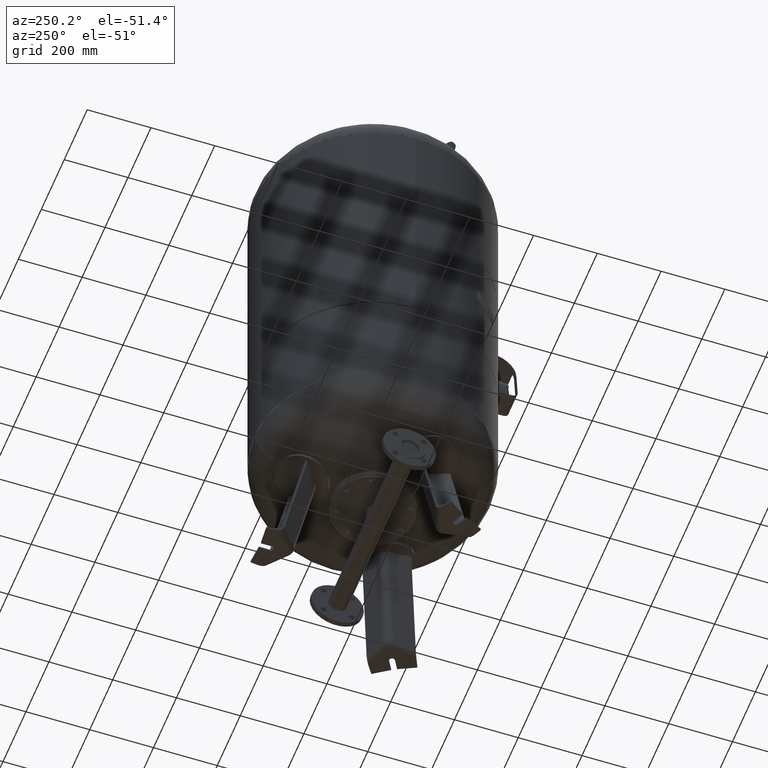
[diagram: clean part render]
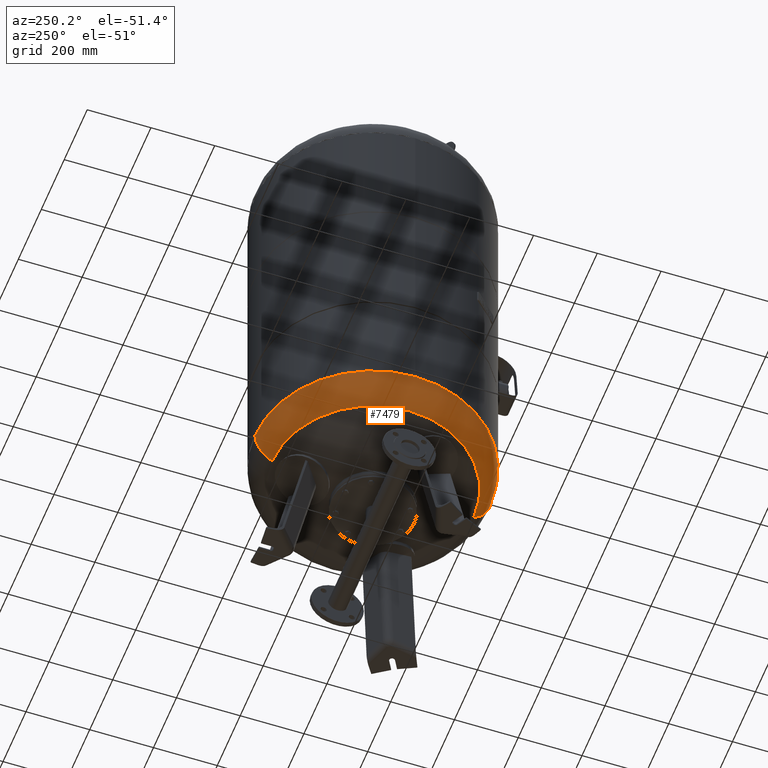
[diagram: same view with one face highlighted and labeled with its STEP entity id]
A machine part, auxiliary view. The second image highlights one B-rep face of the part: STEP entity #7479.
In plain terms, the highlighted toroidal blend (fillet) surface has major radius 254.5 mm and minor (blend) radius 115.5 mm.
Its self-contained STEP definition (entity closure, byte-faithful):
#7384=CARTESIAN_POINT('',(-370.0,-3.468087E-014,513.793879611869560));
#7385=VERTEX_POINT('',#7384);
#7409=CARTESIAN_POINT('',(-4.531044E-014,369.999999999999940,513.793879611869780));
#7410=VERTEX_POINT('',#7409);
#7418=CARTESIAN_POINT('',(0.0,-3.468087E-014,513.793879611869560));
#7419=DIRECTION('',(0.0,0.0,1.0));
#7420=DIRECTION('',(-1.0,0.0,0.0));
#7421=AXIS2_PLACEMENT_3D('',#7418,#7419,#7420);
#7422=CIRCLE('',#7421,370.0);
#7423=EDGE_CURVE('',#7410,#7385,#7422,.T.);
#7428=CARTESIAN_POINT('',(0.0,-3.468087E-014,513.793879611869560));
#7429=DIRECTION('',(0.0,-1.836970E-016,1.0));
#7430=DIRECTION('',(0.0,-1.0,0.0));
#7431=AXIS2_PLACEMENT_3D('',#7428,#7429,#7430);
#7432=TOROIDAL_SURFACE('',#7431,254.500000000000030,115.500000000000000);
#7433=CARTESIAN_POINT('',(0.0,-370.000000000000060,513.793879611869330));
#7434=VERTEX_POINT('',#7433);
#7435=CARTESIAN_POINT('',(0.0,-315.931034482758610,415.985505725079460));
#7436=VERTEX_POINT('',#7435);
#7437=CARTESIAN_POINT('',(0.0,-254.500000000000060,513.793879611869440));
#7438=DIRECTION('',(1.0,0.0,0.0));
#7439=DIRECTION('',(0.0,-1.0,0.0));
#7440=AXIS2_PLACEMENT_3D('',#7437,#7438,#7439);
#7441=CIRCLE('',#7440,115.500000000000000);
#7442=EDGE_CURVE('',#7434,#7436,#7441,.T.);
#7443=ORIENTED_EDGE('',*,*,#7442,.F.);
#7444=CARTESIAN_POINT('',(0.0,-3.468087E-014,513.793879611869560));
#7445=DIRECTION('',(0.0,0.0,1.0));
#7446=DIRECTION('',(-1.0,0.0,0.0));
#7447=AXIS2_PLACEMENT_3D('',#7444,#7445,#7446);
#7448=CIRCLE('',#7447,370.0);
#7449=EDGE_CURVE('',#7385,#7434,#7448,.T.);
#7450=ORIENTED_EDGE('',*,*,#7449,.F.);
#7451=ORIENTED_EDGE('',*,*,#7423,.F.);
#7452=CARTESIAN_POINT('',(-3.868912E-014,315.931034482758610,415.985505725079580));
#7453=VERTEX_POINT('',#7452);
#7454=CARTESIAN_POINT('',(-3.116623E-014,254.500000000000000,513.793879611869670));
#7455=DIRECTION('',(-1.0,0.0,0.0));
#7456=DIRECTION('',(0.0,1.0,0.0));
#7457=AXIS2_PLACEMENT_3D('',#7454,#7455,#7456);
#7458=CIRCLE('',#7457,115.500000000000000);
#7459=EDGE_CURVE('',#7410,#7453,#7458,.T.);
#7460=ORIENTED_EDGE('',*,*,#7459,.T.);
#7461=CARTESIAN_POINT('',(-315.931034482758610,-1.671377E-014,415.985505725079520));
#7462=VERTEX_POINT('',#7461);
#7463=CARTESIAN_POINT('',(0.0,-1.671377E-014,415.985505725079520));
#7464=DIRECTION('',(0.0,0.0,1.0));
#7465=DIRECTION('',(-1.0,0.0,0.0));
#7466=AXIS2_PLACEMENT_3D('',#7463,#7464,#7465);
#7467=CIRCLE('',#7466,315.931034482758610);
#7468=EDGE_CURVE('',#7453,#7462,#7467,.T.);
#7469=ORIENTED_EDGE('',*,*,#7468,.T.);
#7470=CARTESIAN_POINT('',(0.0,-1.671377E-014,415.985505725079520));
#7471=DIRECTION('',(0.0,0.0,1.0));
#7472=DIRECTION('',(-1.0,0.0,0.0));
#7473=AXIS2_PLACEMENT_3D('',#7470,#7471,#7472);
#7474=CIRCLE('',#7473,315.931034482758610);
#7475=EDGE_CURVE('',#7462,#7436,#7474,.T.);
#7476=ORIENTED_EDGE('',*,*,#7475,.T.);
#7477=EDGE_LOOP('',(#7443,#7450,#7451,#7460,#7469,#7476));
#7478=FACE_OUTER_BOUND('',#7477,.T.);
#7479=ADVANCED_FACE('',(#7478),#7432,.T.);